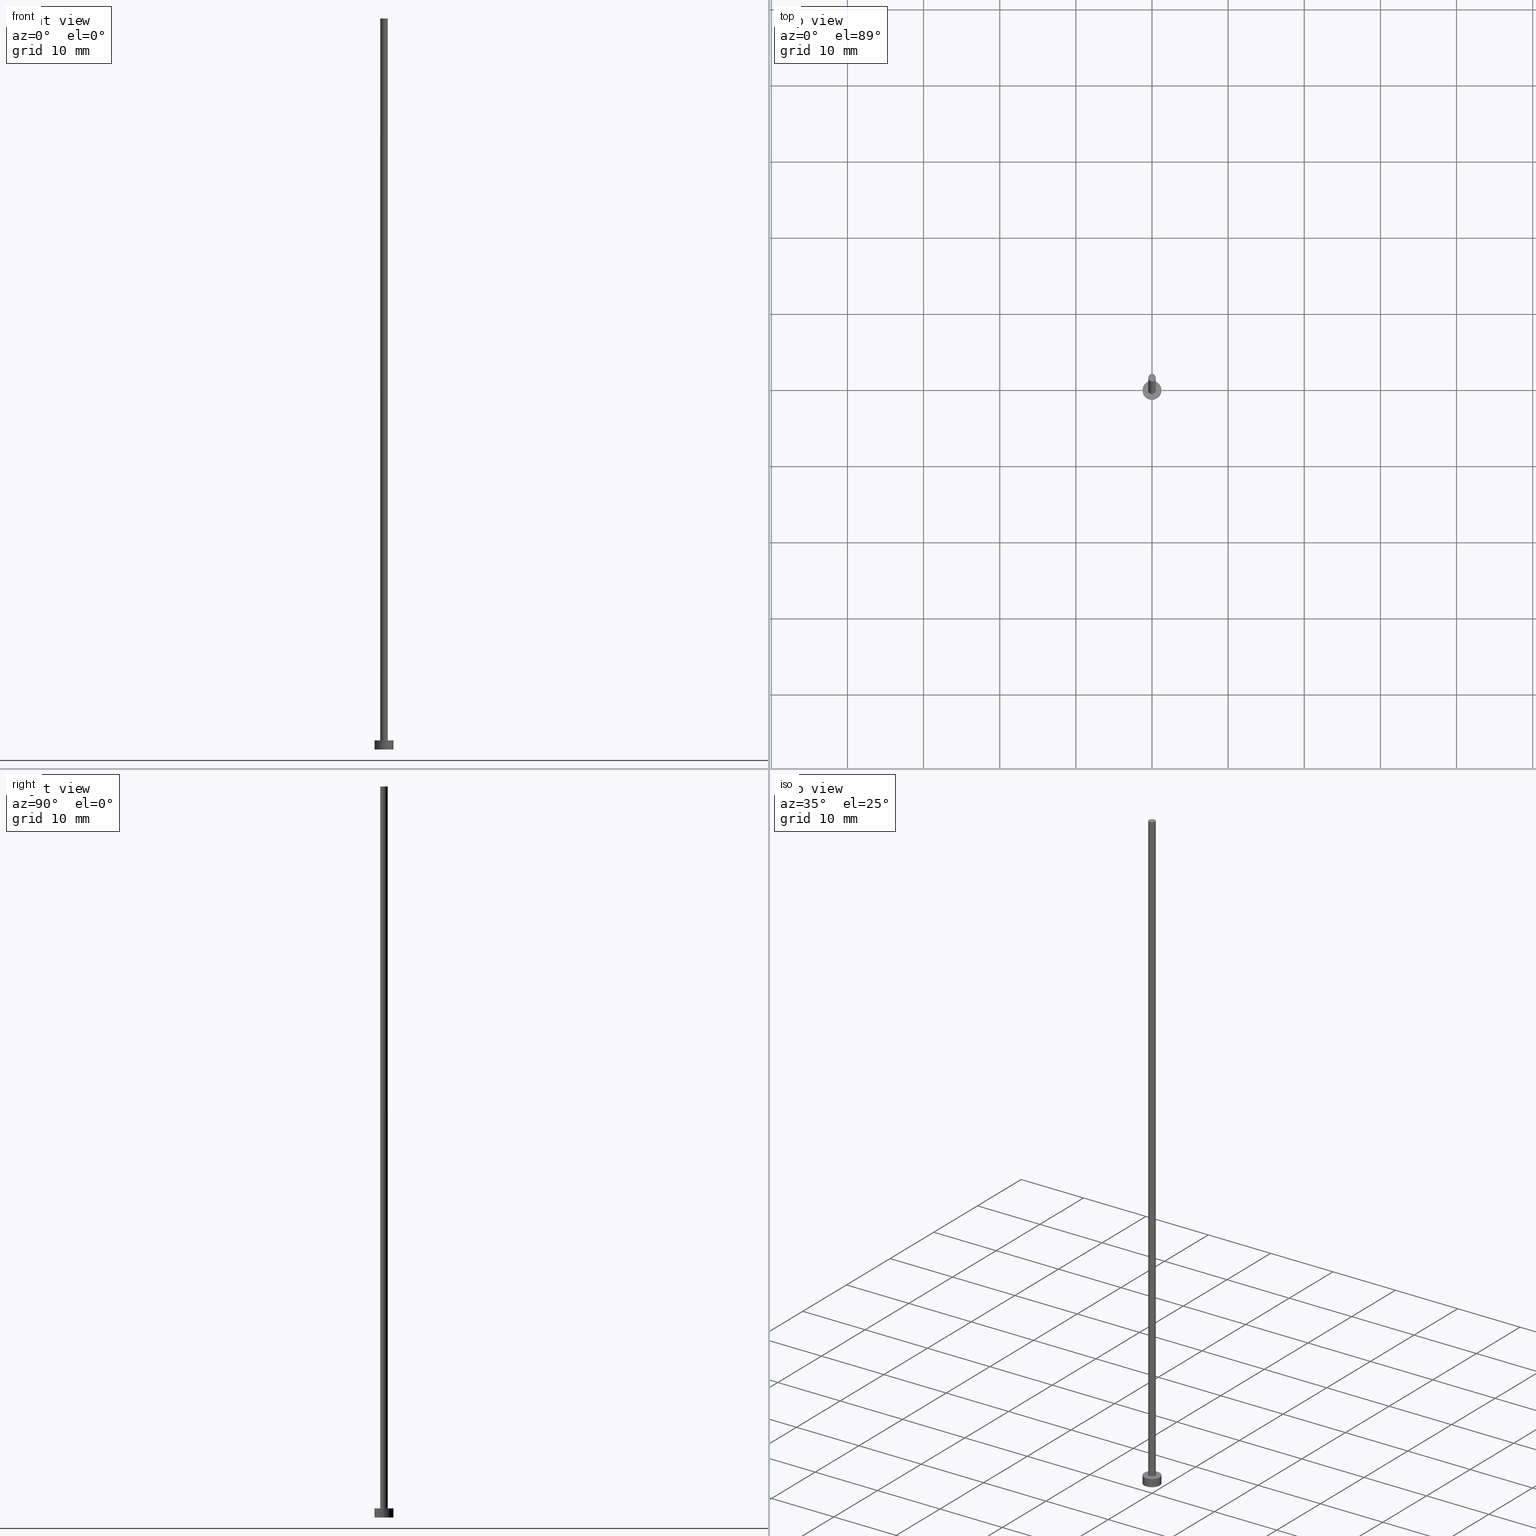
[diagram: canonical four-view strip — front | top / right | iso, engineering-drawing reading convention]
A machine part, canonical four-view strip (front | top / right | iso — engineering-drawing reading convention). The complete STEP part file that produces these views, byte-faithful:
ISO-10303-21;
HEADER;
FILE_DESCRIPTION (( 'STEP AP203' ),
    '1' );
FILE_NAME ('4f54.STEP',
    '2023-03-21T09:23:21',
    ( '' ),
    ( '' ),
    'SwSTEP 2.0',
    'SolidWorks 2019',
    '' );
FILE_SCHEMA (( 'CONFIG_CONTROL_DESIGN' ));
ENDSEC;

DATA;
#1 = MECHANICAL_CONTEXT ( 'NONE', #140, 'mechanical' ) ;
#2 = ADVANCED_FACE ( 'NONE', ( #227 ), #14, .T. ) ;
#3 = EDGE_LOOP ( 'NONE', ( #124, #84, #224, #70 ) ) ;
#4 = VERTEX_POINT ( 'NONE', #64 ) ;
#5 = AXIS2_PLACEMENT_3D ( 'NONE', #58, #106, #86 ) ;
#6 = ORIENTED_EDGE ( 'NONE', *, *, #130, .T. ) ;
#7 = AXIS2_PLACEMENT_3D ( 'NONE', #236, #118, #23 ) ;
#8 = APPROVAL_ROLE ( '' ) ;
#9 = DIRECTION ( 'NONE',  ( -1.000000000000000000, 0.000000000000000000, 0.000000000000000000 ) ) ;
#10 = SECURITY_CLASSIFICATION_LEVEL ( 'unclassified' ) ;
#11 = PRODUCT_DEFINITION ( 'NEZN�M�', '', #63, #31 ) ;
#12 = LOCAL_TIME ( 10, 23, 21.00000000000000000, #126 ) ;
#13 = DATE_AND_TIME ( #34, #12 ) ;
#14 = CYLINDRICAL_SURFACE ( 'NONE', #182, 1.250000000000000000 ) ;
#15 = DATE_AND_TIME ( #190, #174 ) ;
#16 = LINE ( 'NONE', #253, #189 ) ;
#17 = PLANE ( 'NONE',  #161 ) ;
#18 = CARTESIAN_POINT ( 'NONE',  ( -0.5000000000000000000, 0.000000000000000000, 96.00000000000000000 ) ) ;
#19 = DIRECTION ( 'NONE',  ( 1.000000000000000000, 0.000000000000000000, 0.000000000000000000 ) ) ;
#20 = AXIS2_PLACEMENT_3D ( 'NONE', #136, #254, #56 ) ;
#21 = APPROVAL_PERSON_ORGANIZATION ( #211, #196, #166 ) ;
#22 = CARTESIAN_POINT ( 'NONE',  ( 1.250000000000000000, 1.530808498934191571E-16, 1.199999999999999956 ) ) ;
#23 = DIRECTION ( 'NONE',  ( 1.000000000000000000, 0.000000000000000000, 0.000000000000000000 ) ) ;
#24 = EDGE_LOOP ( 'NONE', ( #53, #186 ) ) ;
#25 = AXIS2_PLACEMENT_3D ( 'NONE', #214, #180, #155 ) ;
#26 = ORIENTED_EDGE ( 'NONE', *, *, #33, .T. ) ;
#27 = APPROVAL_STATUS ( 'not_yet_approved' ) ;
#28 = ORIENTED_EDGE ( 'NONE', *, *, #51, .T. ) ;
#29 = COORDINATED_UNIVERSAL_TIME_OFFSET ( 1, 0, .AHEAD. ) ;
#30 = DIRECTION ( 'NONE',  ( -0.000000000000000000, -0.000000000000000000, -1.000000000000000000 ) ) ;
#31 = DESIGN_CONTEXT ( 'detailed design', #75, 'design' ) ;
#32 = PRODUCT_DEFINITION_SHAPE ( 'NONE', 'NONE',  #11 ) ;
#33 = EDGE_CURVE ( 'NONE', #244, #225, #88, .T. ) ;
#34 = CALENDAR_DATE ( 2023, 21, 3 ) ;
#35 = CARTESIAN_POINT ( 'NONE',  ( 0.000000000000000000, 0.000000000000000000, 0.000000000000000000 ) ) ;
#36 = DIRECTION ( 'NONE',  ( 1.000000000000000000, 0.000000000000000000, -0.000000000000000000 ) ) ;
#37 = CIRCLE ( 'NONE', #25, 0.5000000000000000000 ) ;
#38 = PERSON_AND_ORGANIZATION ( #80, #68 ) ;
#39 = COORDINATED_UNIVERSAL_TIME_OFFSET ( 1, 0, .AHEAD. ) ;
#40 = DIRECTION ( 'NONE',  ( -1.000000000000000000, 0.000000000000000000, 0.000000000000000000 ) ) ;
#41 = FACE_BOUND ( 'NONE', #69, .T. ) ;
#42 = CC_DESIGN_DATE_AND_TIME_ASSIGNMENT ( #13, #89, ( #11 ) ) ;
#43 = FACE_OUTER_BOUND ( 'NONE', #101, .T. ) ;
#44 = DIRECTION ( 'NONE',  ( 1.000000000000000000, 0.000000000000000000, 0.000000000000000000 ) ) ;
#45 = CC_DESIGN_APPROVAL ( #196, ( #134 ) ) ;
#46 =( NAMED_UNIT ( * ) PLANE_ANGLE_UNIT ( ) SI_UNIT ( $, .RADIAN. ) );
#47 = ORIENTED_EDGE ( 'NONE', *, *, #98, .T. ) ;
#48 = EDGE_CURVE ( 'NONE', #122, #4, #152, .T. ) ;
#49 = AXIS2_PLACEMENT_3D ( 'NONE', #35, #229, #36 ) ;
#50 = ORIENTED_EDGE ( 'NONE', *, *, #130, .F. ) ;
#51 = EDGE_CURVE ( 'NONE', #205, #165, #132, .T. ) ;
#52 = PERSON_AND_ORGANIZATION ( #80, #68 ) ;
#53 = ORIENTED_EDGE ( 'NONE', *, *, #65, .F. ) ;
#54 = ADVANCED_BREP_SHAPE_REPRESENTATION ( '4f54', ( #93, #7 ), #243 ) ;
#55 = ORIENTED_EDGE ( 'NONE', *, *, #65, .T. ) ;
#56 = DIRECTION ( 'NONE',  ( 1.000000000000000000, 0.000000000000000000, 0.000000000000000000 ) ) ;
#57 = CALENDAR_DATE ( 2023, 21, 3 ) ;
#58 = CARTESIAN_POINT ( 'NONE',  ( 0.000000000000000000, 0.000000000000000000, 1.199999999999999956 ) ) ;
#59 = DATE_AND_TIME ( #172, #193 ) ;
#60 = CARTESIAN_POINT ( 'NONE',  ( 0.000000000000000000, 0.000000000000000000, 96.00000000000000000 ) ) ;
#61 = PERSON_AND_ORGANIZATION ( #80, #68 ) ;
#62 = CIRCLE ( 'NONE', #87, 1.250000000000000000 ) ;
#63 = PRODUCT_DEFINITION_FORMATION_WITH_SPECIFIED_SOURCE ( 'LIBOVOLN�', '', #175, .NOT_KNOWN. ) ;
#64 = CARTESIAN_POINT ( 'NONE',  ( 0.5000000000000000000, 6.123233995736766036E-17, 1.199999999999999956 ) ) ;
#65 = EDGE_CURVE ( 'NONE', #225, #100, #62, .T. ) ;
#66 = DIRECTION ( 'NONE',  ( -0.000000000000000000, -0.000000000000000000, -1.000000000000000000 ) ) ;
#67 = DIRECTION ( 'NONE',  ( 0.000000000000000000, 0.000000000000000000, 1.000000000000000000 ) ) ;
#68 = ORGANIZATION ( 'NEUR�EN�', 'NEUR�EN�', '' ) ;
#69 = EDGE_LOOP ( 'NONE', ( #200, #219 ) ) ;
#70 = ORIENTED_EDGE ( 'NONE', *, *, #33, .F. ) ;
#71 = EDGE_CURVE ( 'NONE', #4, #122, #232, .T. ) ;
#72 = APPROVAL_PERSON_ORGANIZATION ( #206, #249, #252 ) ;
#73 = EDGE_LOOP ( 'NONE', ( #162, #47 ) ) ;
#74 = CARTESIAN_POINT ( 'NONE',  ( 0.000000000000000000, 0.000000000000000000, 1.199999999999999956 ) ) ;
#75 = APPLICATION_CONTEXT ( 'configuration controlled 3d designs of mechanical parts and assemblies' ) ;
#76 = APPLICATION_PROTOCOL_DEFINITION ( 'international standard', 'config_control_design', 1994, #140 ) ;
#77 = CARTESIAN_POINT ( 'NONE',  ( 0.000000000000000000, 0.000000000000000000, 1.199999999999999956 ) ) ;
#78 = ADVANCED_FACE ( 'NONE', ( #151 ), #212, .T. ) ;
#79 = CARTESIAN_POINT ( 'NONE',  ( 0.000000000000000000, 0.000000000000000000, 96.00000000000000000 ) ) ;
#80 = PERSON ( 'NEUR�EN�', 'NEUR�EN�', 'NEUR�EN�', ('NEUR�EN�'), ('NEUR�EN�'), ('NEUR�EN�') ) ;
#81 = CC_DESIGN_PERSON_AND_ORGANIZATION_ASSIGNMENT ( #128, #208, ( #11 ) ) ;
#82 = ORIENTED_EDGE ( 'NONE', *, *, #48, .T. ) ;
#83 = CLOSED_SHELL ( 'NONE', ( #78, #2, #241, #191, #110, #137, #147 ) ) ;
#84 = ORIENTED_EDGE ( 'NONE', *, *, #125, .T. ) ;
#85 = SHAPE_DEFINITION_REPRESENTATION ( #32, #54 ) ;
#86 = DIRECTION ( 'NONE',  ( 1.000000000000000000, 0.000000000000000000, 0.000000000000000000 ) ) ;
#87 = AXIS2_PLACEMENT_3D ( 'NONE', #127, #207, #90 ) ;
#88 = LINE ( 'NONE', #248, #173 ) ;
#89 = DATE_TIME_ROLE ( 'creation_date' ) ;
#90 = DIRECTION ( 'NONE',  ( 1.000000000000000000, 0.000000000000000000, 0.000000000000000000 ) ) ;
#91 = APPROVAL_DATE_TIME ( #15, #196 ) ;
#92 = LOCAL_TIME ( 10, 23, 21.00000000000000000, #29 ) ;
#93 = MANIFOLD_SOLID_BREP ( 'P�idat vysunut�m3', #83 ) ;
#94 = CARTESIAN_POINT ( 'NONE',  ( 0.5000000000000000000, 6.123233995736766036E-17, 96.00000000000000000 ) ) ;
#95 = CARTESIAN_POINT ( 'NONE',  ( -1.250000000000000000, 0.000000000000000000, 1.199999999999999956 ) ) ;
#96 = CYLINDRICAL_SURFACE ( 'NONE', #103, 0.5000000000000000000 ) ;
#97 = CIRCLE ( 'NONE', #146, 1.250000000000000000 ) ;
#98 = EDGE_CURVE ( 'NONE', #144, #244, #116, .T. ) ;
#99 = AXIS2_PLACEMENT_3D ( 'NONE', #226, #131, #188 ) ;
#100 = VERTEX_POINT ( 'NONE', #246 ) ;
#101 = EDGE_LOOP ( 'NONE', ( #222, #119, #6, #82 ) ) ;
#102 = AXIS2_PLACEMENT_3D ( 'NONE', #74, #251, #135 ) ;
#103 = AXIS2_PLACEMENT_3D ( 'NONE', #79, #194, #40 ) ;
#104 = EDGE_LOOP ( 'NONE', ( #28, #192 ) ) ;
#105 = PERSON_AND_ORGANIZATION_ROLE ( 'design_supplier' ) ;
#106 = DIRECTION ( 'NONE',  ( 0.000000000000000000, 0.000000000000000000, 1.000000000000000000 ) ) ;
#107 = CC_DESIGN_DATE_AND_TIME_ASSIGNMENT ( #59, #133, ( #134 ) ) ;
#108 = DATE_AND_TIME ( #213, #92 ) ;
#109 = APPROVAL_DATE_TIME ( #149, #221 ) ;
#110 = ADVANCED_FACE ( 'NONE', ( #129 ), #167, .F. ) ;
#111 = APPROVAL_PERSON_ORGANIZATION ( #121, #221, #8 ) ;
#112 = CARTESIAN_POINT ( 'NONE',  ( -0.5000000000000000000, 0.000000000000000000, 1.199999999999999956 ) ) ;
#113 = APPROVAL_STATUS ( 'not_yet_approved' ) ;
#114 = CARTESIAN_POINT ( 'NONE',  ( 0.000000000000000000, 0.000000000000000000, 1.199999999999999956 ) ) ;
#115 = LINE ( 'NONE', #18, #141 ) ;
#116 = CIRCLE ( 'NONE', #5, 1.250000000000000000 ) ;
#117 = CYLINDRICAL_SURFACE ( 'NONE', #159, 1.250000000000000000 ) ;
#118 = DIRECTION ( 'NONE',  ( 0.000000000000000000, 0.000000000000000000, 1.000000000000000000 ) ) ;
#119 = ORIENTED_EDGE ( 'NONE', *, *, #51, .F. ) ;
#120 = AXIS2_PLACEMENT_3D ( 'NONE', #176, #255, #195 ) ;
#121 = PERSON_AND_ORGANIZATION ( #80, #68 ) ;
#122 = VERTEX_POINT ( 'NONE', #112 ) ;
#123 = ORIENTED_EDGE ( 'NONE', *, *, #71, .T. ) ;
#124 = ORIENTED_EDGE ( 'NONE', *, *, #98, .F. ) ;
#125 = EDGE_CURVE ( 'NONE', #144, #100, #16, .T. ) ;
#126 = COORDINATED_UNIVERSAL_TIME_OFFSET ( 1, 0, .AHEAD. ) ;
#127 = CARTESIAN_POINT ( 'NONE',  ( 0.000000000000000000, 0.000000000000000000, 0.000000000000000000 ) ) ;
#128 = PERSON_AND_ORGANIZATION ( #80, #68 ) ;
#129 = FACE_OUTER_BOUND ( 'NONE', #24, .T. ) ;
#130 = EDGE_CURVE ( 'NONE', #205, #122, #115, .T. ) ;
#131 = DIRECTION ( 'NONE',  ( 0.000000000000000000, 0.000000000000000000, 1.000000000000000000 ) ) ;
#132 = CIRCLE ( 'NONE', #20, 0.5000000000000000000 ) ;
#133 = DATE_TIME_ROLE ( 'classification_date' ) ;
#134 = SECURITY_CLASSIFICATION ( '', '', #10 ) ;
#135 = DIRECTION ( 'NONE',  ( 1.000000000000000000, 0.000000000000000000, 0.000000000000000000 ) ) ;
#136 = CARTESIAN_POINT ( 'NONE',  ( 0.000000000000000000, 0.000000000000000000, 96.00000000000000000 ) ) ;
#137 = ADVANCED_FACE ( 'NONE', ( #43 ), #96, .T. ) ;
#138 =( LENGTH_UNIT ( ) NAMED_UNIT ( * ) SI_UNIT ( .MILLI., .METRE. ) );
#139 = DIRECTION ( 'NONE',  ( -0.000000000000000000, -0.000000000000000000, -1.000000000000000000 ) ) ;
#140 = APPLICATION_CONTEXT ( 'configuration controlled 3d designs of mechanical parts and assemblies' ) ;
#141 = VECTOR ( 'NONE', #139, 1000.000000000000000 ) ;
#142 = FACE_OUTER_BOUND ( 'NONE', #73, .T. ) ;
#143 = AXIS2_PLACEMENT_3D ( 'NONE', #197, #67, #44 ) ;
#144 = VERTEX_POINT ( 'NONE', #22 ) ;
#145 = EDGE_CURVE ( 'NONE', #165, #4, #156, .T. ) ;
#146 = AXIS2_PLACEMENT_3D ( 'NONE', #114, #158, #19 ) ;
#147 = ADVANCED_FACE ( 'NONE', ( #237 ), #17, .T. ) ;
#148 = UNCERTAINTY_MEASURE_WITH_UNIT (LENGTH_MEASURE( 1.000000000000000082E-05 ), #138, 'distance_accuracy_value', 'NONE');
#149 = DATE_AND_TIME ( #57, #153 ) ;
#150 = PERSON_AND_ORGANIZATION_ROLE ( 'creator' ) ;
#151 = FACE_OUTER_BOUND ( 'NONE', #203, .T. ) ;
#152 = CIRCLE ( 'NONE', #99, 0.5000000000000000000 ) ;
#153 = LOCAL_TIME ( 10, 23, 21.00000000000000000, #247 ) ;
#154 = DIRECTION ( 'NONE',  ( -0.000000000000000000, -0.000000000000000000, -1.000000000000000000 ) ) ;
#155 = DIRECTION ( 'NONE',  ( 1.000000000000000000, 0.000000000000000000, 0.000000000000000000 ) ) ;
#156 = LINE ( 'NONE', #199, #223 ) ;
#157 = AXIS2_PLACEMENT_3D ( 'NONE', #60, #30, #209 ) ;
#158 = DIRECTION ( 'NONE',  ( 0.000000000000000000, 0.000000000000000000, 1.000000000000000000 ) ) ;
#159 = AXIS2_PLACEMENT_3D ( 'NONE', #77, #238, #181 ) ;
#160 = CARTESIAN_POINT ( 'NONE',  ( -0.5000000000000000000, 0.000000000000000000, 96.00000000000000000 ) ) ;
#161 = AXIS2_PLACEMENT_3D ( 'NONE', #217, #198, #234 ) ;
#162 = ORIENTED_EDGE ( 'NONE', *, *, #163, .T. ) ;
#163 = EDGE_CURVE ( 'NONE', #244, #144, #97, .T. ) ;
#164 = CIRCLE ( 'NONE', #143, 1.250000000000000000 ) ;
#165 = VERTEX_POINT ( 'NONE', #94 ) ;
#166 = APPROVAL_ROLE ( '' ) ;
#167 = PLANE ( 'NONE',  #49 ) ;
#168 = CC_DESIGN_APPROVAL ( #221, ( #11 ) ) ;
#169 = CC_DESIGN_PERSON_AND_ORGANIZATION_ASSIGNMENT ( #61, #228, ( #134 ) ) ;
#170 = APPROVAL_DATE_TIME ( #108, #249 ) ;
#171 = CARTESIAN_POINT ( 'NONE',  ( 0.000000000000000000, 0.000000000000000000, 1.199999999999999956 ) ) ;
#172 = CALENDAR_DATE ( 2023, 21, 3 ) ;
#173 = VECTOR ( 'NONE', #154, 1000.000000000000000 ) ;
#174 = LOCAL_TIME ( 10, 23, 21.00000000000000000, #187 ) ;
#175 = PRODUCT ( '4f54', '4f54', '', ( #1 ) ) ;
#176 = CARTESIAN_POINT ( 'NONE',  ( 0.000000000000000000, 0.000000000000000000, 1.199999999999999956 ) ) ;
#177 =( NAMED_UNIT ( * ) SI_UNIT ( $, .STERADIAN. ) SOLID_ANGLE_UNIT ( ) );
#178 = CC_DESIGN_PERSON_AND_ORGANIZATION_ASSIGNMENT ( #52, #204, ( #175 ) ) ;
#179 = PRODUCT_RELATED_PRODUCT_CATEGORY ( 'detail', '', ( #175 ) ) ;
#180 = DIRECTION ( 'NONE',  ( 0.000000000000000000, 0.000000000000000000, 1.000000000000000000 ) ) ;
#181 = DIRECTION ( 'NONE',  ( -1.000000000000000000, 0.000000000000000000, 0.000000000000000000 ) ) ;
#182 = AXIS2_PLACEMENT_3D ( 'NONE', #171, #231, #9 ) ;
#183 = ORIENTED_EDGE ( 'NONE', *, *, #163, .F. ) ;
#184 = APPLICATION_PROTOCOL_DEFINITION ( 'international standard', 'config_control_design', 1994, #75 ) ;
#185 = EDGE_LOOP ( 'NONE', ( #220, #183, #26, #55 ) ) ;
#186 = ORIENTED_EDGE ( 'NONE', *, *, #215, .F. ) ;
#187 = COORDINATED_UNIVERSAL_TIME_OFFSET ( 1, 0, .AHEAD. ) ;
#188 = DIRECTION ( 'NONE',  ( 1.000000000000000000, 0.000000000000000000, 0.000000000000000000 ) ) ;
#189 = VECTOR ( 'NONE', #233, 1000.000000000000000 ) ;
#190 = CALENDAR_DATE ( 2023, 21, 3 ) ;
#191 = ADVANCED_FACE ( 'NONE', ( #41, #142 ), #216, .T. ) ;
#192 = ORIENTED_EDGE ( 'NONE', *, *, #245, .T. ) ;
#193 = LOCAL_TIME ( 10, 23, 21.00000000000000000, #39 ) ;
#194 = DIRECTION ( 'NONE',  ( -0.000000000000000000, -0.000000000000000000, -1.000000000000000000 ) ) ;
#195 = DIRECTION ( 'NONE',  ( 1.000000000000000000, 0.000000000000000000, -0.000000000000000000 ) ) ;
#196 = APPROVAL ( #113, 'NEUR�EN�' ) ;
#197 = CARTESIAN_POINT ( 'NONE',  ( 0.000000000000000000, 0.000000000000000000, 0.000000000000000000 ) ) ;
#198 = DIRECTION ( 'NONE',  ( 0.000000000000000000, 0.000000000000000000, 1.000000000000000000 ) ) ;
#199 = CARTESIAN_POINT ( 'NONE',  ( 0.5000000000000000000, 6.123233995736766036E-17, 96.00000000000000000 ) ) ;
#200 = ORIENTED_EDGE ( 'NONE', *, *, #48, .F. ) ;
#201 = ORIENTED_EDGE ( 'NONE', *, *, #145, .T. ) ;
#202 = CC_DESIGN_PERSON_AND_ORGANIZATION_ASSIGNMENT ( #230, #150, ( #63 ) ) ;
#203 = EDGE_LOOP ( 'NONE', ( #240, #201, #123, #50 ) ) ;
#204 = PERSON_AND_ORGANIZATION_ROLE ( 'design_owner' ) ;
#205 = VERTEX_POINT ( 'NONE', #160 ) ;
#206 = PERSON_AND_ORGANIZATION ( #80, #68 ) ;
#207 = DIRECTION ( 'NONE',  ( 0.000000000000000000, 0.000000000000000000, 1.000000000000000000 ) ) ;
#208 = PERSON_AND_ORGANIZATION_ROLE ( 'creator' ) ;
#209 = DIRECTION ( 'NONE',  ( -1.000000000000000000, 0.000000000000000000, 0.000000000000000000 ) ) ;
#210 = CC_DESIGN_APPROVAL ( #249, ( #63 ) ) ;
#211 = PERSON_AND_ORGANIZATION ( #80, #68 ) ;
#212 = CYLINDRICAL_SURFACE ( 'NONE', #157, 0.5000000000000000000 ) ;
#213 = CALENDAR_DATE ( 2023, 21, 3 ) ;
#214 = CARTESIAN_POINT ( 'NONE',  ( 0.000000000000000000, 0.000000000000000000, 96.00000000000000000 ) ) ;
#215 = EDGE_CURVE ( 'NONE', #100, #225, #164, .T. ) ;
#216 = PLANE ( 'NONE',  #120 ) ;
#217 = CARTESIAN_POINT ( 'NONE',  ( 0.000000000000000000, 0.000000000000000000, 96.00000000000000000 ) ) ;
#218 = CARTESIAN_POINT ( 'NONE',  ( -1.250000000000000000, 0.000000000000000000, 0.000000000000000000 ) ) ;
#219 = ORIENTED_EDGE ( 'NONE', *, *, #71, .F. ) ;
#220 = ORIENTED_EDGE ( 'NONE', *, *, #125, .F. ) ;
#221 = APPROVAL ( #27, 'NEUR�EN�' ) ;
#222 = ORIENTED_EDGE ( 'NONE', *, *, #145, .F. ) ;
#223 = VECTOR ( 'NONE', #66, 1000.000000000000000 ) ;
#224 = ORIENTED_EDGE ( 'NONE', *, *, #215, .T. ) ;
#225 = VERTEX_POINT ( 'NONE', #218 ) ;
#226 = CARTESIAN_POINT ( 'NONE',  ( 0.000000000000000000, 0.000000000000000000, 1.199999999999999956 ) ) ;
#227 = FACE_OUTER_BOUND ( 'NONE', #3, .T. ) ;
#228 = PERSON_AND_ORGANIZATION_ROLE ( 'classification_officer' ) ;
#229 = DIRECTION ( 'NONE',  ( 0.000000000000000000, 0.000000000000000000, 1.000000000000000000 ) ) ;
#230 = PERSON_AND_ORGANIZATION ( #80, #68 ) ;
#231 = DIRECTION ( 'NONE',  ( -0.000000000000000000, -0.000000000000000000, -1.000000000000000000 ) ) ;
#232 = CIRCLE ( 'NONE', #102, 0.5000000000000000000 ) ;
#233 = DIRECTION ( 'NONE',  ( -0.000000000000000000, -0.000000000000000000, -1.000000000000000000 ) ) ;
#234 = DIRECTION ( 'NONE',  ( 1.000000000000000000, 0.000000000000000000, -0.000000000000000000 ) ) ;
#235 = FACE_OUTER_BOUND ( 'NONE', #185, .T. ) ;
#236 = CARTESIAN_POINT ( 'NONE',  ( 0.000000000000000000, 0.000000000000000000, 0.000000000000000000 ) ) ;
#237 = FACE_OUTER_BOUND ( 'NONE', #104, .T. ) ;
#238 = DIRECTION ( 'NONE',  ( -0.000000000000000000, -0.000000000000000000, -1.000000000000000000 ) ) ;
#239 = CC_DESIGN_SECURITY_CLASSIFICATION ( #134, ( #63 ) ) ;
#240 = ORIENTED_EDGE ( 'NONE', *, *, #245, .F. ) ;
#241 = ADVANCED_FACE ( 'NONE', ( #235 ), #117, .T. ) ;
#242 = CC_DESIGN_PERSON_AND_ORGANIZATION_ASSIGNMENT ( #38, #105, ( #63 ) ) ;
#243 =( GEOMETRIC_REPRESENTATION_CONTEXT ( 3 ) GLOBAL_UNCERTAINTY_ASSIGNED_CONTEXT ( ( #148 ) ) GLOBAL_UNIT_ASSIGNED_CONTEXT ( ( #138, #46, #177 ) ) REPRESENTATION_CONTEXT ( 'NONE', 'WORKASPACE' ) );
#244 = VERTEX_POINT ( 'NONE', #95 ) ;
#245 = EDGE_CURVE ( 'NONE', #165, #205, #37, .T. ) ;
#246 = CARTESIAN_POINT ( 'NONE',  ( 1.250000000000000000, 1.530808498934191571E-16, 0.000000000000000000 ) ) ;
#247 = COORDINATED_UNIVERSAL_TIME_OFFSET ( 1, 0, .AHEAD. ) ;
#248 = CARTESIAN_POINT ( 'NONE',  ( -1.250000000000000000, 0.000000000000000000, 1.199999999999999956 ) ) ;
#249 = APPROVAL ( #250, 'NEUR�EN�' ) ;
#250 = APPROVAL_STATUS ( 'not_yet_approved' ) ;
#251 = DIRECTION ( 'NONE',  ( 0.000000000000000000, 0.000000000000000000, 1.000000000000000000 ) ) ;
#252 = APPROVAL_ROLE ( '' ) ;
#253 = CARTESIAN_POINT ( 'NONE',  ( 1.250000000000000000, 1.530808498934191571E-16, 1.199999999999999956 ) ) ;
#254 = DIRECTION ( 'NONE',  ( 0.000000000000000000, 0.000000000000000000, 1.000000000000000000 ) ) ;
#255 = DIRECTION ( 'NONE',  ( 0.000000000000000000, 0.000000000000000000, 1.000000000000000000 ) ) ;
ENDSEC;
END-ISO-10303-21;
